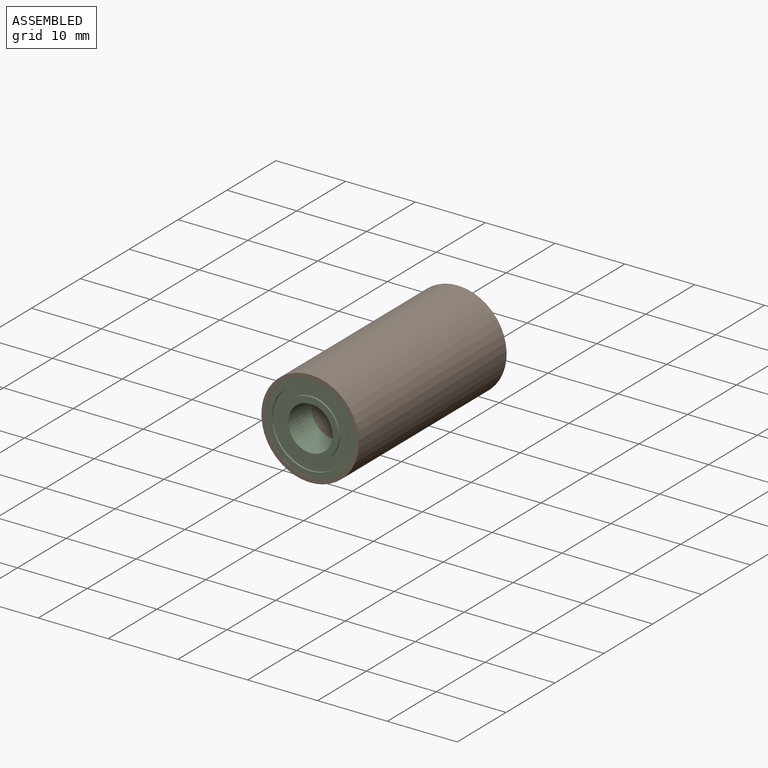
[diagram: assembled view]
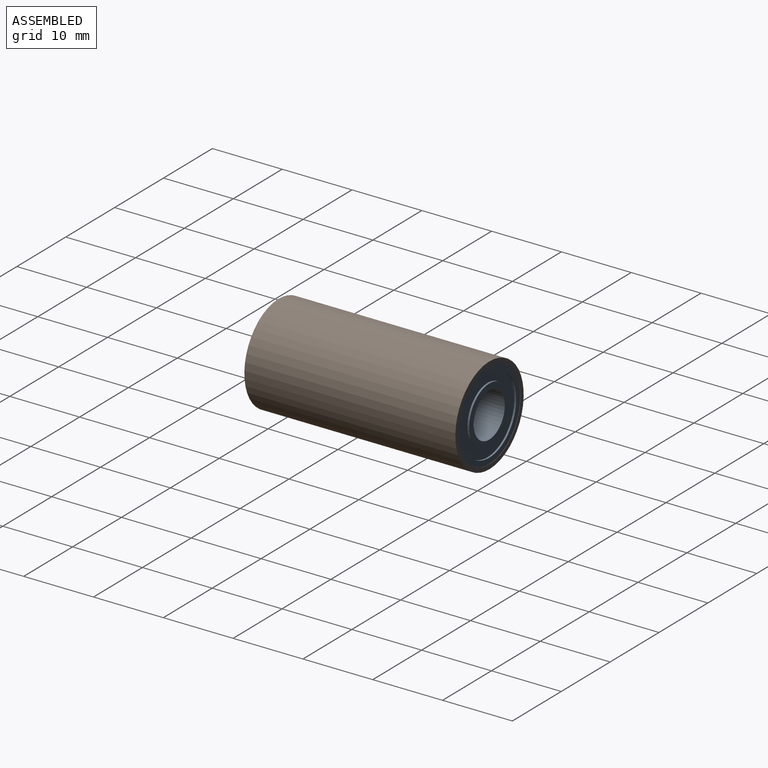
[diagram: assembled view, second angle]
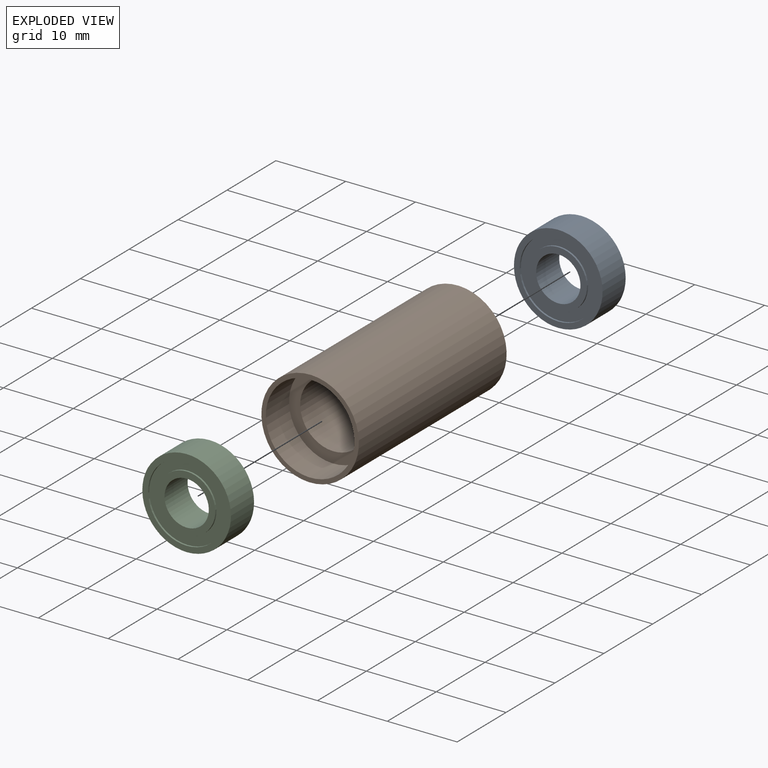
[diagram: exploded view]
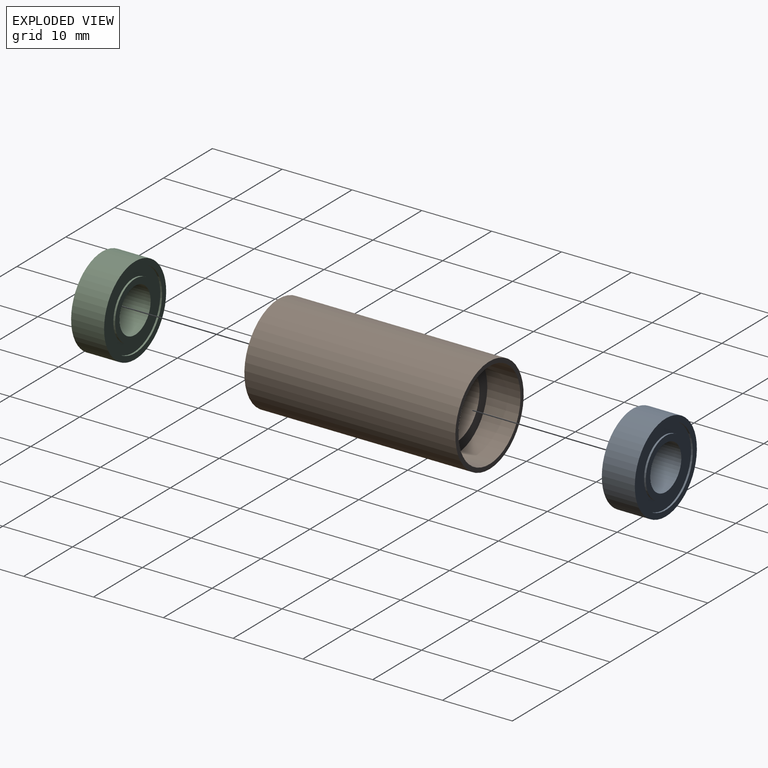
[diagram: exploded view, second angle]
ASSEMBLY  parts=3 mates=2
PART A: 12 faces, bbox 12.7x4.7x12.7 mm
  f0: cylinder r=4.1mm len=8.2mm, axis (0,-1,0), area 6.5mm2, adj f6,f11
  f1: cylinder r=5.52mm len=11.05mm, axis (0,-1,0), area 8.8mm2, adj f9,f11
  f2: cylinder r=4.1mm len=8.2mm, axis (0,1,0), area 6.5mm2, adj f7,f10
  f3: cylinder r=5.52mm len=11.05mm, axis (0,1,0), area 8.8mm2, adj f8,f10
  f4: cylinder r=3.17mm len=6.35mm, axis (0,-1,0), area 94.2mm2, adj f6,f7
  f5: cylinder r=6.35mm len=12.7mm, axis (0,-1,0), area 188.5mm2, adj f8,f9
  f6: plane 8.2x8.2mm, normal (0,-1,0), area 21.2mm2, adj f0,f4
  f7: plane 8.2x8.2mm, normal (0,1,0), area 21.2mm2, adj f2,f4
  f8: plane 12.7x12.7mm, normal (0,1,0), area 30.8mm2, adj f3,f5
  f9: plane 12.7x12.7mm, normal (0,-1,0), area 30.8mm2, adj f1,f5
  f10: plane 11.05x11.05mm, normal (0,1,0), area 43mm2, adj f2,f3
  f11: plane 11.05x11.05mm, normal (0,-1,0), area 43mm2, adj f0,f1
PART B: 8 faces, bbox 14x30.2x14 mm
  f0: cylinder r=6.35mm len=12.7mm, axis (0,-1,0), area 190mm2, adj f4,f7
  f1: cylinder r=6.35mm len=12.7mm, axis (0,1,0), area 190mm2, adj f5,f6
  f2: cylinder r=6.99mm len=30.23mm, axis (0,-1,0), area 1326.6mm2, adj f4,f5
  f3: cylinder r=4.76mm len=20.7mm, axis (0,-1,0), area 619.4mm2, adj f6,f7
  f4: plane 13.97x13.97mm, normal (0,-1,0), area 26.6mm2, adj f0,f2
  f5: plane 13.97x13.97mm, normal (0,1,0), area 26.6mm2, adj f1,f2
  f6: plane 12.7x12.7mm, normal (0,1,0), area 55.4mm2, adj f1,f3
  f7: plane 12.7x12.7mm, normal (0,-1,0), area 55.4mm2, adj f0,f3
PART C: same geometry as A
PLACE A rot(axis=(0.99,0,0.14),180deg) t=(-44.78,38.34,25.1)mm
PLACE B rot(axis=(0.99,0,0.14),180deg) t=(-44.78,38.38,25.1)mm
PLACE C rot(axis=(0,-1,0),15.6deg) t=(-44.78,8.19,25.1)mm
MATE fastened A.f0 <-> B.f0  axis (0,-1,0) through (-44.78,33.61,25.1)mm
MATE fastened B.f0 <-> C.f0  axis (0,1,0) through (-44.78,12.91,25.1)mm
